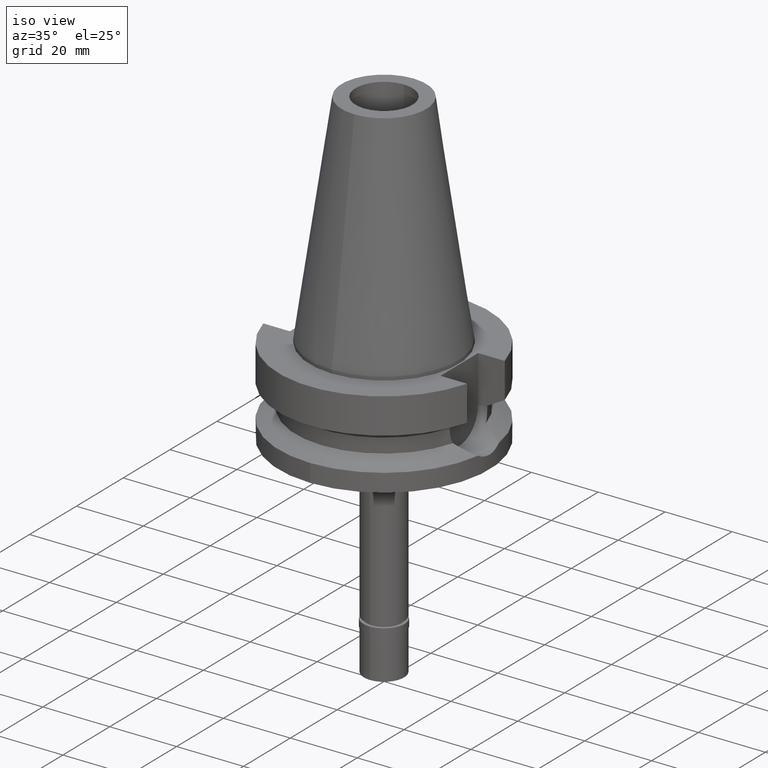
[diagram: clean part render]
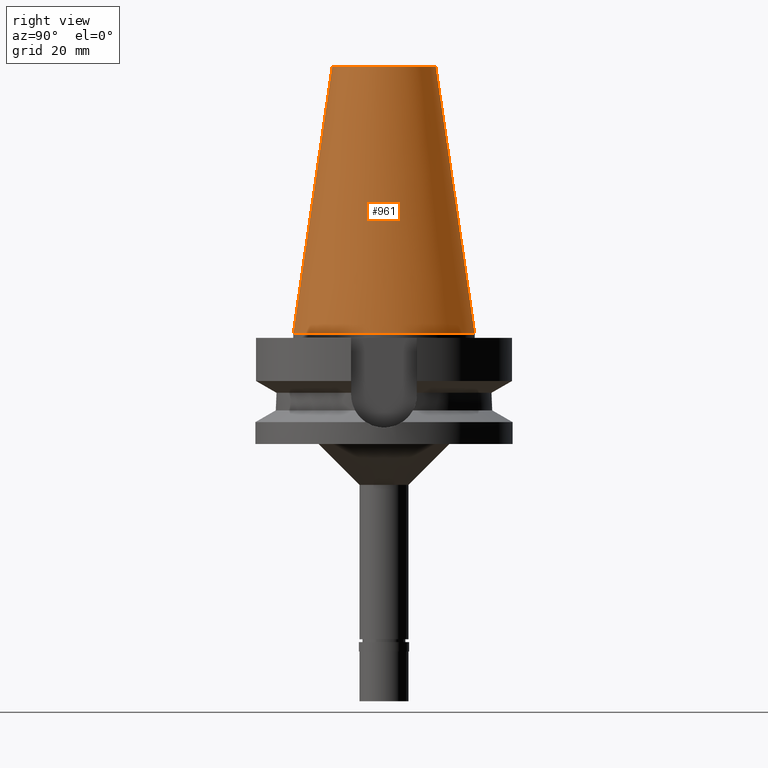
[diagram: tour spotlight — one face highlighted and labeled with its STEP entity id]
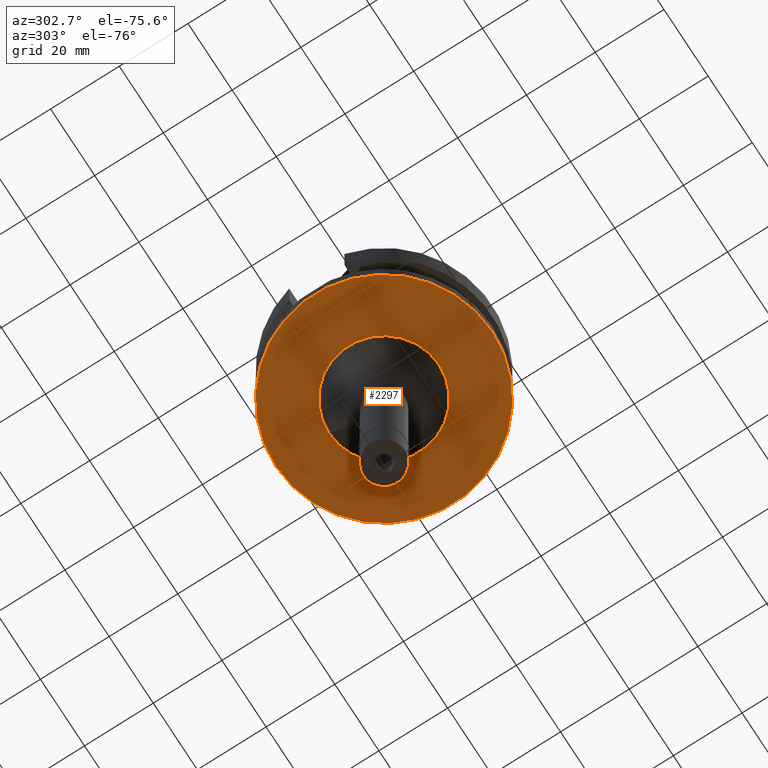
[diagram: tour spotlight — one face highlighted and labeled with its STEP entity id]
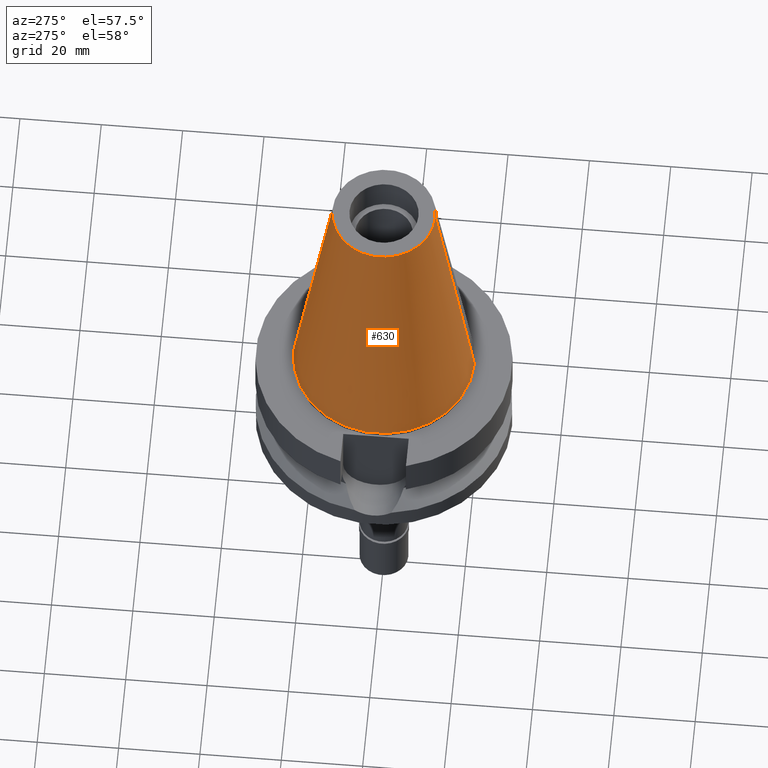
[diagram: tour spotlight — one face highlighted and labeled with its STEP entity id]
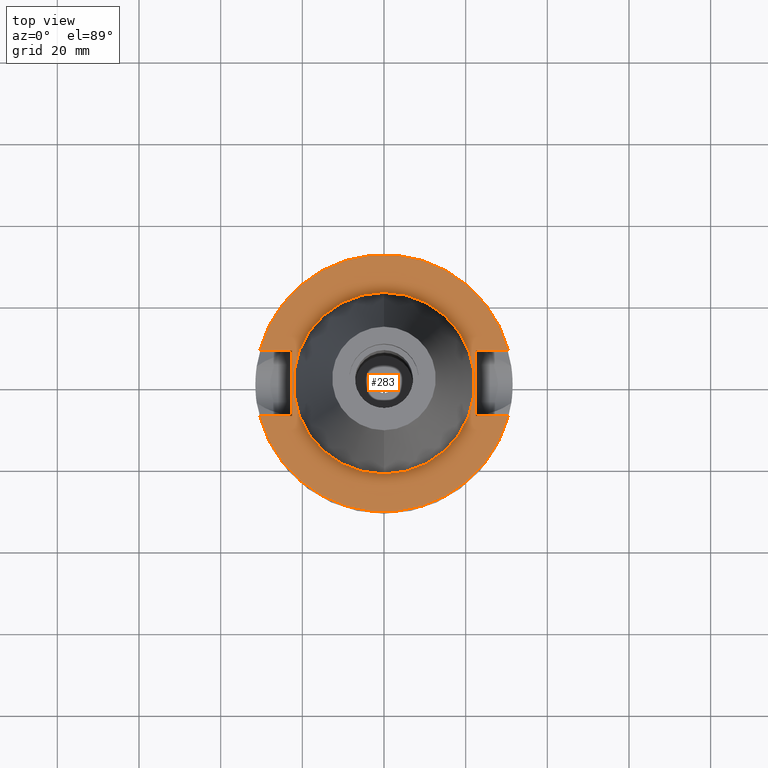
[diagram: tour spotlight — one face highlighted and labeled with its STEP entity id]
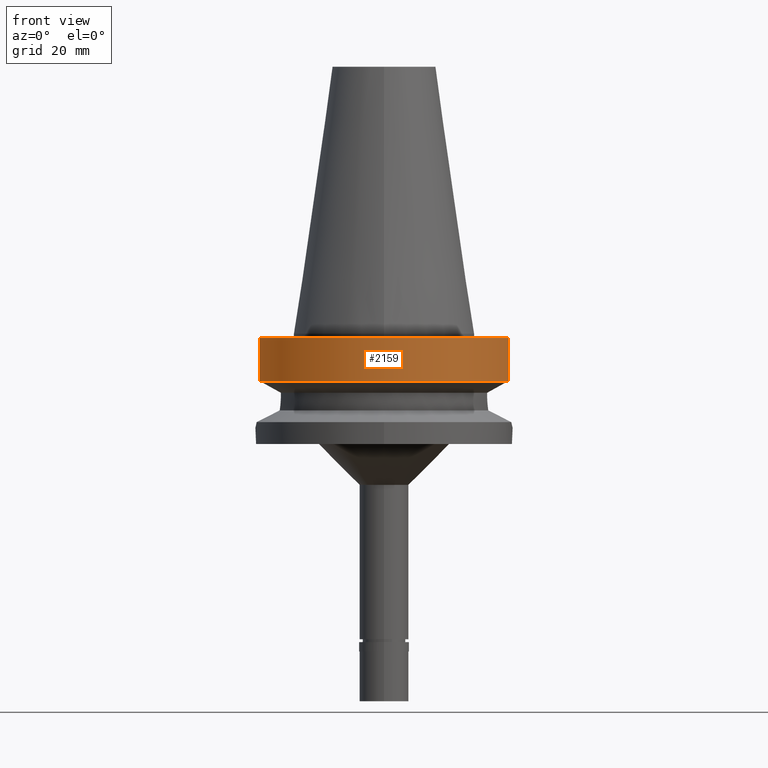
[diagram: tour spotlight — one face highlighted and labeled with its STEP entity id]
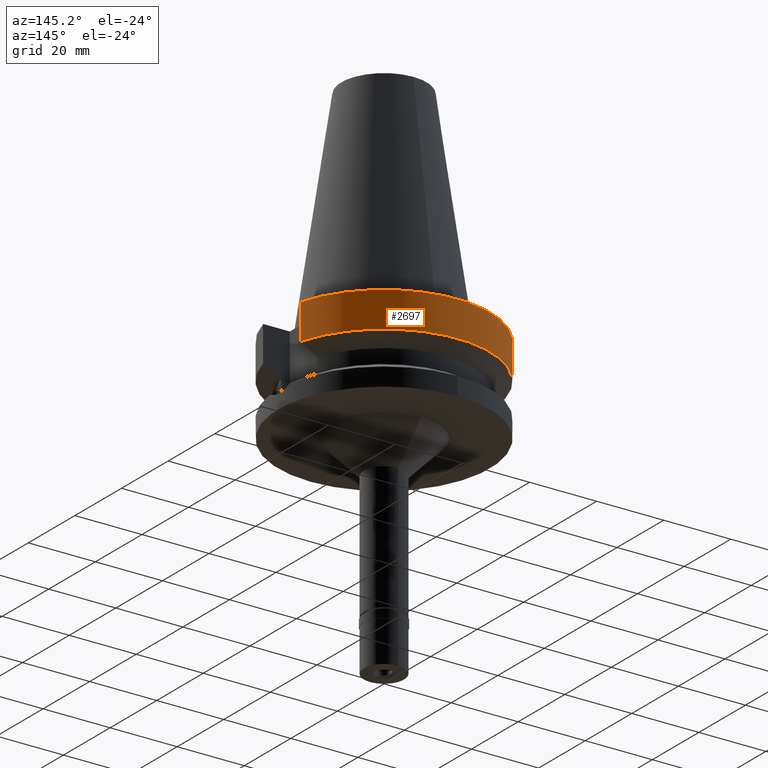
[diagram: tour spotlight — one face highlighted and labeled with its STEP entity id]
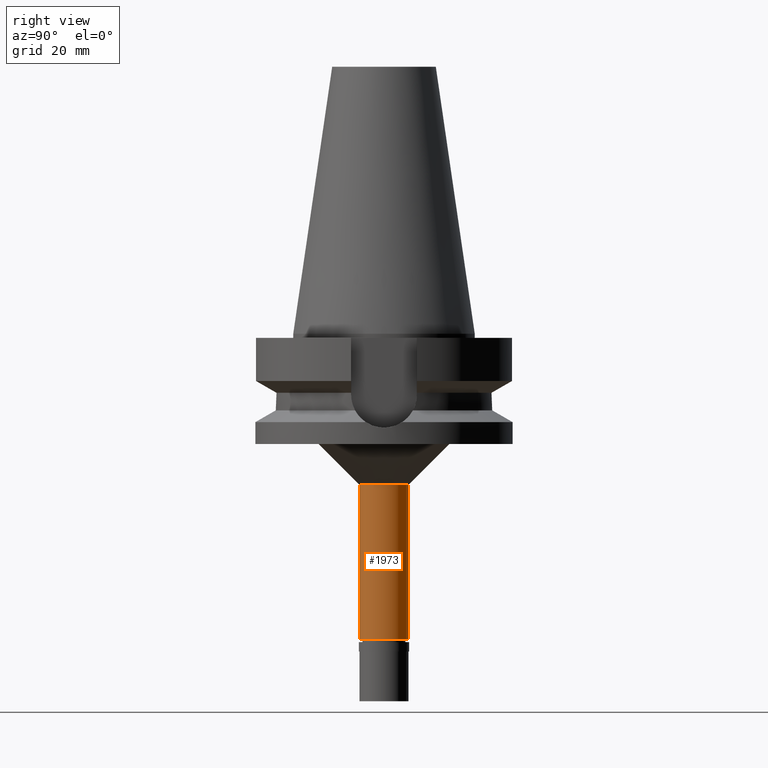
[diagram: tour spotlight — one face highlighted and labeled with its STEP entity id]
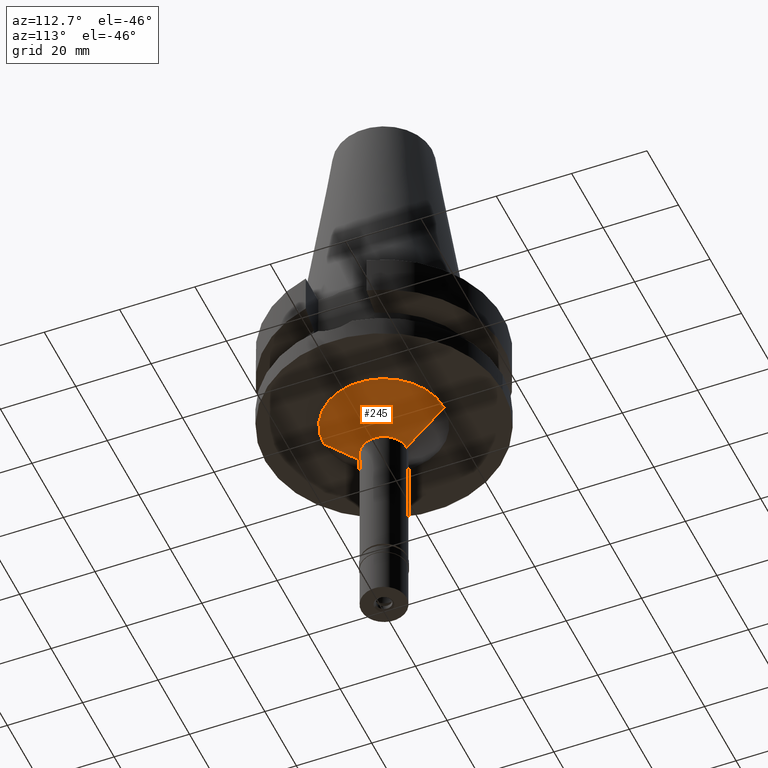
[diagram: tour spotlight — one face highlighted and labeled with its STEP entity id]
A machine part: a face-by-face anatomy tour. The part has 71 B-rep faces; the first image is the clean iso view, then the 8 largest visible faces are spotlighted one at a time (largest first), each with its STEP entity span.

Face 1 — right view, entity #961. In plain terms, the highlighted conical surface has half-angle 8.297 deg.
Definition (entity closure, byte-faithful):
#98 = AXIS2_PLACEMENT_3D ( 'NONE', #575, #1243, #2138 ) ;
#300 = DIRECTION ( 'NONE',  ( 0.0000000000000000000, -0.1443043893539925626, -0.9895333461855498891 ) ) ;
#316 = CARTESIAN_POINT ( 'NONE',  ( 0.0000000000000000000, 22.22500000000000142, 1.065814103639999827E-13 ) ) ;
#369 = CONICAL_SURFACE ( 'NONE', #2032, 17.45633449714999941, 0.1448099680379422438 ) ;
#387 = CIRCLE ( 'NONE', #1524, 22.22500000000000142 ) ;
#426 = VECTOR ( 'NONE', #493, 1000.000000000000114 ) ;
#436 = DIRECTION ( 'NONE',  ( 0.0000000000000000000, -1.000000000000000000, 0.0000000000000000000 ) ) ;
#443 = VERTEX_POINT ( 'NONE', #316 ) ;
#493 = DIRECTION ( 'NONE',  ( 0.0000000000000000000, 0.1443043893539925626, -0.9895333461855498891 ) ) ;
#528 = EDGE_CURVE ( 'NONE', #443, #1377, #387, .T. ) ;
#543 = ORIENTED_EDGE ( 'NONE', *, *, #528, .F. ) ;
#574 = VECTOR ( 'NONE', #300, 1000.000000000000114 ) ;
#575 = CARTESIAN_POINT ( 'NONE',  ( 0.0000000000000000000, 1.625106302469000024E-14, 65.40000000000000568 ) ) ;
#684 = EDGE_CURVE ( 'NONE', #1426, #1485, #2315, .T. ) ;
#774 = CARTESIAN_POINT ( 'NONE',  ( 0.0000000000000000000, -22.22500000000000142, 1.065814103639999827E-13 ) ) ;
#855 = ORIENTED_EDGE ( 'NONE', *, *, #1287, .F. ) ;
#955 = CARTESIAN_POINT ( 'NONE',  ( 0.0000000000000000000, 12.68766899429999917, 65.40000000000000568 ) ) ;
#961 = ADVANCED_FACE ( 'NONE', ( #1987 ), #369, .T. ) ;
#1156 = EDGE_CURVE ( 'NONE', #1485, #1377, #1188, .T. ) ;
#1188 = LINE ( 'NONE', #1871, #574 ) ;
#1243 = DIRECTION ( 'NONE',  ( 0.0000000000000000000, 0.0000000000000000000, -1.000000000000000000 ) ) ;
#1287 = EDGE_CURVE ( 'NONE', #1426, #443, #1638, .T. ) ;
#1377 = VERTEX_POINT ( 'NONE', #774 ) ;
#1426 = VERTEX_POINT ( 'NONE', #2849 ) ;
#1485 = VERTEX_POINT ( 'NONE', #2835 ) ;
#1524 = AXIS2_PLACEMENT_3D ( 'NONE', #2457, #1774, #2180 ) ;
#1638 = LINE ( 'NONE', #955, #426 ) ;
#1774 = DIRECTION ( 'NONE',  ( 0.0000000000000000000, 0.0000000000000000000, -1.000000000000000000 ) ) ;
#1871 = CARTESIAN_POINT ( 'NONE',  ( 0.0000000000000000000, -12.68766899429999917, 65.40000000000000568 ) ) ;
#1987 = FACE_OUTER_BOUND ( 'NONE', #2084, .T. ) ;
#2032 = AXIS2_PLACEMENT_3D ( 'NONE', #2468, #2854, #436 ) ;
#2084 = EDGE_LOOP ( 'NONE', ( #2194, #2181, #543, #855 ) ) ;
#2138 = DIRECTION ( 'NONE',  ( 0.0000000000000000000, 1.000000000000000000, 0.0000000000000000000 ) ) ;
#2180 = DIRECTION ( 'NONE',  ( 0.0000000000000000000, 1.000000000000000000, 0.0000000000000000000 ) ) ;
#2181 = ORIENTED_EDGE ( 'NONE', *, *, #1156, .T. ) ;
#2194 = ORIENTED_EDGE ( 'NONE', *, *, #684, .T. ) ;
#2315 = CIRCLE ( 'NONE', #98, 12.68766899429999917 ) ;
#2457 = CARTESIAN_POINT ( 'NONE',  ( 0.0000000000000000000, 1.625106302469000024E-14, 2.842170943039999687E-14 ) ) ;
#2468 = CARTESIAN_POINT ( 'NONE',  ( 0.0000000000000000000, 1.625106302469000024E-14, 32.70000000000000284 ) ) ;
#2835 = CARTESIAN_POINT ( 'NONE',  ( 0.0000000000000000000, -12.68766899429999917, 65.40000000000000568 ) ) ;
#2849 = CARTESIAN_POINT ( 'NONE',  ( 0.0000000000000000000, 12.68766899429999917, 65.40000000000000568 ) ) ;
#2854 = DIRECTION ( 'NONE',  ( 0.0000000000000000000, 0.0000000000000000000, -1.000000000000000000 ) ) ;

Face 2 — auxiliary view, entity #2297. In plain terms, the highlighted planar face has unit normal (0, 0, -1).
Definition (entity closure, byte-faithful):
#26 = AXIS2_PLACEMENT_3D ( 'NONE', #1858, #711, #2735 ) ;
#58 = VERTEX_POINT ( 'NONE', #1043 ) ;
#126 = ORIENTED_EDGE ( 'NONE', *, *, #2023, .F. ) ;
#325 = AXIS2_PLACEMENT_3D ( 'NONE', #1545, #2014, #2884 ) ;
#344 = CARTESIAN_POINT ( 'NONE',  ( 0.0000000000000000000, 0.0000000000000000000, -27.00000000000000000 ) ) ;
#378 = CIRCLE ( 'NONE', #2038, 31.50000000000000000 ) ;
#557 = VERTEX_POINT ( 'NONE', #615 ) ;
#615 = CARTESIAN_POINT ( 'NONE',  ( 0.0000000000000000000, -16.00000000000000000, -27.00000000000000000 ) ) ;
#711 = DIRECTION ( 'NONE',  ( 0.0000000000000000000, 0.0000000000000000000, -1.000000000000000000 ) ) ;
#795 = CIRCLE ( 'NONE', #1805, 16.00000000000000000 ) ;
#823 = VERTEX_POINT ( 'NONE', #2813 ) ;
#946 = FACE_BOUND ( 'NONE', #1363, .T. ) ;
#954 = EDGE_CURVE ( 'NONE', #58, #823, #1178, .T. ) ;
#1043 = CARTESIAN_POINT ( 'NONE',  ( 0.0000000000000000000, -31.50000000000000000, -27.00000000000000000 ) ) ;
#1128 = VERTEX_POINT ( 'NONE', #2268 ) ;
#1178 = CIRCLE ( 'NONE', #325, 31.50000000000000000 ) ;
#1363 = EDGE_LOOP ( 'NONE', ( #2139, #2694 ) ) ;
#1478 = DIRECTION ( 'NONE',  ( 0.0000000000000000000, 1.000000000000000000, 0.0000000000000000000 ) ) ;
#1517 = AXIS2_PLACEMENT_3D ( 'NONE', #1540, #2433, #2214 ) ;
#1540 = CARTESIAN_POINT ( 'NONE',  ( 0.0000000000000000000, 0.0000000000000000000, -27.00000000000000000 ) ) ;
#1545 = CARTESIAN_POINT ( 'NONE',  ( 0.0000000000000000000, 2.118271568485000005E-14, -27.00000000000000000 ) ) ;
#1761 = FACE_OUTER_BOUND ( 'NONE', #2383, .T. ) ;
#1805 = AXIS2_PLACEMENT_3D ( 'NONE', #344, #2125, #2363 ) ;
#1847 = EDGE_CURVE ( 'NONE', #557, #1128, #2767, .T. ) ;
#1858 = CARTESIAN_POINT ( 'NONE',  ( 0.0000000000000000000, 0.0000000000000000000, -27.00000000000000000 ) ) ;
#2014 = DIRECTION ( 'NONE',  ( 0.0000000000000000000, 0.0000000000000000000, 1.000000000000000000 ) ) ;
#2018 = ORIENTED_EDGE ( 'NONE', *, *, #954, .F. ) ;
#2023 = EDGE_CURVE ( 'NONE', #823, #58, #378, .T. ) ;
#2038 = AXIS2_PLACEMENT_3D ( 'NONE', #2417, #2184, #1478 ) ;
#2064 = EDGE_CURVE ( 'NONE', #1128, #557, #795, .T. ) ;
#2125 = DIRECTION ( 'NONE',  ( 0.0000000000000000000, 0.0000000000000000000, -1.000000000000000000 ) ) ;
#2139 = ORIENTED_EDGE ( 'NONE', *, *, #2064, .F. ) ;
#2184 = DIRECTION ( 'NONE',  ( 0.0000000000000000000, 0.0000000000000000000, 1.000000000000000000 ) ) ;
#2214 = DIRECTION ( 'NONE',  ( 0.0000000000000000000, -1.000000000000000000, 0.0000000000000000000 ) ) ;
#2268 = CARTESIAN_POINT ( 'NONE',  ( 0.0000000000000000000, 16.00000000000000000, -27.00000000000000000 ) ) ;
#2297 = ADVANCED_FACE ( 'NONE', ( #1761, #946 ), #2521, .T. ) ;
#2363 = DIRECTION ( 'NONE',  ( 0.0000000000000000000, 1.000000000000000000, 0.0000000000000000000 ) ) ;
#2383 = EDGE_LOOP ( 'NONE', ( #126, #2018 ) ) ;
#2417 = CARTESIAN_POINT ( 'NONE',  ( 0.0000000000000000000, 2.118271568485000005E-14, -27.00000000000000000 ) ) ;
#2433 = DIRECTION ( 'NONE',  ( 0.0000000000000000000, 0.0000000000000000000, -1.000000000000000000 ) ) ;
#2521 = PLANE ( 'NONE',  #26 ) ;
#2694 = ORIENTED_EDGE ( 'NONE', *, *, #1847, .F. ) ;
#2735 = DIRECTION ( 'NONE',  ( 0.0000000000000000000, -1.000000000000000000, 0.0000000000000000000 ) ) ;
#2767 = CIRCLE ( 'NONE', #1517, 16.00000000000000000 ) ;
#2813 = CARTESIAN_POINT ( 'NONE',  ( 0.0000000000000000000, 31.50000000000000000, -27.00000000000000000 ) ) ;
#2884 = DIRECTION ( 'NONE',  ( 0.0000000000000000000, -1.000000000000000000, 0.0000000000000000000 ) ) ;

Face 3 — auxiliary view, entity #630. In plain terms, the highlighted conical surface has half-angle 8.297 deg.
Definition (entity closure, byte-faithful):
#177 = ORIENTED_EDGE ( 'NONE', *, *, #1287, .T. ) ;
#190 = ORIENTED_EDGE ( 'NONE', *, *, #1156, .F. ) ;
#211 = DIRECTION ( 'NONE',  ( 0.0000000000000000000, -1.000000000000000000, 0.0000000000000000000 ) ) ;
#300 = DIRECTION ( 'NONE',  ( 0.0000000000000000000, -0.1443043893539925626, -0.9895333461855498891 ) ) ;
#316 = CARTESIAN_POINT ( 'NONE',  ( 0.0000000000000000000, 22.22500000000000142, 1.065814103639999827E-13 ) ) ;
#426 = VECTOR ( 'NONE', #493, 1000.000000000000114 ) ;
#443 = VERTEX_POINT ( 'NONE', #316 ) ;
#493 = DIRECTION ( 'NONE',  ( 0.0000000000000000000, 0.1443043893539925626, -0.9895333461855498891 ) ) ;
#535 = AXIS2_PLACEMENT_3D ( 'NONE', #778, #2141, #1735 ) ;
#574 = VECTOR ( 'NONE', #300, 1000.000000000000114 ) ;
#630 = ADVANCED_FACE ( 'NONE', ( #1584 ), #1900, .T. ) ;
#676 = DIRECTION ( 'NONE',  ( 0.0000000000000000000, 0.0000000000000000000, -1.000000000000000000 ) ) ;
#774 = CARTESIAN_POINT ( 'NONE',  ( 0.0000000000000000000, -22.22500000000000142, 1.065814103639999827E-13 ) ) ;
#778 = CARTESIAN_POINT ( 'NONE',  ( 0.0000000000000000000, 1.625106302469000024E-14, 2.842170943039999687E-14 ) ) ;
#888 = CARTESIAN_POINT ( 'NONE',  ( 0.0000000000000000000, 1.625106302469000024E-14, 32.70000000000000284 ) ) ;
#955 = CARTESIAN_POINT ( 'NONE',  ( 0.0000000000000000000, 12.68766899429999917, 65.40000000000000568 ) ) ;
#1112 = DIRECTION ( 'NONE',  ( 0.0000000000000000000, -1.000000000000000000, 0.0000000000000000000 ) ) ;
#1156 = EDGE_CURVE ( 'NONE', #1485, #1377, #1188, .T. ) ;
#1188 = LINE ( 'NONE', #1871, #574 ) ;
#1287 = EDGE_CURVE ( 'NONE', #1426, #443, #1638, .T. ) ;
#1316 = ORIENTED_EDGE ( 'NONE', *, *, #1995, .F. ) ;
#1377 = VERTEX_POINT ( 'NONE', #774 ) ;
#1426 = VERTEX_POINT ( 'NONE', #2849 ) ;
#1485 = VERTEX_POINT ( 'NONE', #2835 ) ;
#1497 = EDGE_LOOP ( 'NONE', ( #1316, #190, #1994, #177 ) ) ;
#1584 = FACE_OUTER_BOUND ( 'NONE', #1497, .T. ) ;
#1638 = LINE ( 'NONE', #955, #426 ) ;
#1672 = AXIS2_PLACEMENT_3D ( 'NONE', #888, #676, #211 ) ;
#1735 = DIRECTION ( 'NONE',  ( 0.0000000000000000000, -1.000000000000000000, 0.0000000000000000000 ) ) ;
#1806 = EDGE_CURVE ( 'NONE', #1485, #1426, #2319, .T. ) ;
#1871 = CARTESIAN_POINT ( 'NONE',  ( 0.0000000000000000000, -12.68766899429999917, 65.40000000000000568 ) ) ;
#1900 = CONICAL_SURFACE ( 'NONE', #1672, 17.45633449714999941, 0.1448099680379422438 ) ;
#1994 = ORIENTED_EDGE ( 'NONE', *, *, #1806, .T. ) ;
#1995 = EDGE_CURVE ( 'NONE', #1377, #443, #2227, .T. ) ;
#1997 = CARTESIAN_POINT ( 'NONE',  ( 0.0000000000000000000, 1.625106302469000024E-14, 65.40000000000000568 ) ) ;
#2053 = DIRECTION ( 'NONE',  ( 0.0000000000000000000, 0.0000000000000000000, -1.000000000000000000 ) ) ;
#2141 = DIRECTION ( 'NONE',  ( 0.0000000000000000000, 0.0000000000000000000, -1.000000000000000000 ) ) ;
#2227 = CIRCLE ( 'NONE', #535, 22.22500000000000142 ) ;
#2319 = CIRCLE ( 'NONE', #2630, 12.68766899429999917 ) ;
#2630 = AXIS2_PLACEMENT_3D ( 'NONE', #1997, #2053, #1112 ) ;
#2835 = CARTESIAN_POINT ( 'NONE',  ( 0.0000000000000000000, -12.68766899429999917, 65.40000000000000568 ) ) ;
#2849 = CARTESIAN_POINT ( 'NONE',  ( 0.0000000000000000000, 12.68766899429999917, 65.40000000000000568 ) ) ;

Face 4 — top view, entity #283. In plain terms, the highlighted planar face has unit normal (0, 0, -1).
Definition (entity closure, byte-faithful):
#15 = CARTESIAN_POINT ( 'NONE',  ( 0.0000000000000000000, 2.118271568485000005E-14, -1.000000000000000000 ) ) ;
#17 = PLANE ( 'NONE',  #488 ) ;
#60 = ORIENTED_EDGE ( 'NONE', *, *, #1402, .T. ) ;
#100 = LINE ( 'NONE', #2178, #1135 ) ;
#110 = ORIENTED_EDGE ( 'NONE', *, *, #349, .F. ) ;
#142 = VECTOR ( 'NONE', #257, 1000.000000000000000 ) ;
#204 = CARTESIAN_POINT ( 'NONE',  ( 22.50000000000000000, 8.050000000000000711, -1.000000000000000000 ) ) ;
#214 = CARTESIAN_POINT ( 'NONE',  ( 0.0000000000000000000, 22.22500000000000142, -1.000000000000000000 ) ) ;
#238 = EDGE_CURVE ( 'NONE', #694, #1406, #2010, .T. ) ;
#241 = VECTOR ( 'NONE', #1809, 1000.000000000000000 ) ;
#257 = DIRECTION ( 'NONE',  ( 0.0000000000000000000, -1.000000000000000000, 0.0000000000000000000 ) ) ;
#283 = ADVANCED_FACE ( 'NONE', ( #1087, #876 ), #17, .F. ) ;
#293 = LINE ( 'NONE', #2532, #1234 ) ;
#299 = VERTEX_POINT ( 'NONE', #1588 ) ;
#349 = EDGE_CURVE ( 'NONE', #1406, #299, #293, .T. ) ;
#386 = DIRECTION ( 'NONE',  ( 0.0000000000000000000, -1.000000000000000000, 0.0000000000000000000 ) ) ;
#448 = EDGE_CURVE ( 'NONE', #2833, #2092, #1205, .T. ) ;
#481 = CIRCLE ( 'NONE', #2405, 31.50000000000000000 ) ;
#488 = AXIS2_PLACEMENT_3D ( 'NONE', #1793, #2673, #1770 ) ;
#694 = VERTEX_POINT ( 'NONE', #1483 ) ;
#700 = EDGE_CURVE ( 'NONE', #2092, #956, #100, .T. ) ;
#790 = DIRECTION ( 'NONE',  ( 1.000000000000000000, 3.573249715389999860E-14, 0.0000000000000000000 ) ) ;
#803 = CARTESIAN_POINT ( 'NONE',  ( -22.50000000000000000, -8.050000000000000711, -1.000000000000000000 ) ) ;
#866 = EDGE_CURVE ( 'NONE', #1922, #1687, #1567, .T. ) ;
#876 = FACE_BOUND ( 'NONE', #1350, .T. ) ;
#953 = DIRECTION ( 'NONE',  ( -1.000000000000000000, -3.550916904668000126E-14, 0.0000000000000000000 ) ) ;
#956 = VERTEX_POINT ( 'NONE', #2193 ) ;
#979 = AXIS2_PLACEMENT_3D ( 'NONE', #1222, #1452, #2746 ) ;
#994 = CARTESIAN_POINT ( 'NONE',  ( 0.0000000000000000000, 2.118271568485000005E-14, -1.000000000000000000 ) ) ;
#1001 = CARTESIAN_POINT ( 'NONE',  ( -22.50000000000000000, 8.050000000000000711, -1.000000000000000000 ) ) ;
#1087 = FACE_OUTER_BOUND ( 'NONE', #1471, .T. ) ;
#1135 = VECTOR ( 'NONE', #790, 1000.000000000000000 ) ;
#1205 = LINE ( 'NONE', #2112, #142 ) ;
#1206 = LINE ( 'NONE', #1220, #1617 ) ;
#1220 = CARTESIAN_POINT ( 'NONE',  ( 22.50000000000000000, 8.050000000000000711, -1.000000000000000000 ) ) ;
#1222 = CARTESIAN_POINT ( 'NONE',  ( 0.0000000000000000000, 2.118271568485000005E-14, -1.000000000000000000 ) ) ;
#1234 = VECTOR ( 'NONE', #953, 1000.000000000000000 ) ;
#1350 = EDGE_LOOP ( 'NONE', ( #2721, #2196 ) ) ;
#1364 = CIRCLE ( 'NONE', #979, 31.50000000000000000 ) ;
#1402 = EDGE_CURVE ( 'NONE', #2833, #2621, #1206, .T. ) ;
#1406 = VERTEX_POINT ( 'NONE', #1001 ) ;
#1452 = DIRECTION ( 'NONE',  ( 0.0000000000000000000, 0.0000000000000000000, -1.000000000000000000 ) ) ;
#1471 = EDGE_LOOP ( 'NONE', ( #2535, #2461, #2333, #2183, #60, #1728, #110, #2296 ) ) ;
#1483 = CARTESIAN_POINT ( 'NONE',  ( -22.50000000000000000, -8.050000000000000711, -1.000000000000000000 ) ) ;
#1509 = AXIS2_PLACEMENT_3D ( 'NONE', #994, #1955, #386 ) ;
#1567 = CIRCLE ( 'NONE', #1509, 22.22500000000000142 ) ;
#1588 = CARTESIAN_POINT ( 'NONE',  ( -30.45402272279000044, 8.050000000000000711, -1.000000000000000000 ) ) ;
#1617 = VECTOR ( 'NONE', #1892, 1000.000000000000000 ) ;
#1687 = VERTEX_POINT ( 'NONE', #214 ) ;
#1728 = ORIENTED_EDGE ( 'NONE', *, *, #2873, .F. ) ;
#1770 = DIRECTION ( 'NONE',  ( 0.0000000000000000000, -1.000000000000000000, 0.0000000000000000000 ) ) ;
#1780 = CARTESIAN_POINT ( 'NONE',  ( -22.50000000000000000, -8.050000000000000711, -1.000000000000000000 ) ) ;
#1793 = CARTESIAN_POINT ( 'NONE',  ( 0.0000000000000000000, 1.212400331155999925E-14, -1.000000000000000000 ) ) ;
#1809 = DIRECTION ( 'NONE',  ( 0.0000000000000000000, 1.000000000000000000, 0.0000000000000000000 ) ) ;
#1830 = DIRECTION ( 'NONE',  ( 0.0000000000000000000, 0.0000000000000000000, -1.000000000000000000 ) ) ;
#1880 = DIRECTION ( 'NONE',  ( 0.0000000000000000000, 0.0000000000000000000, 1.000000000000000000 ) ) ;
#1892 = DIRECTION ( 'NONE',  ( 1.000000000000000000, -3.506251283225999947E-14, 0.0000000000000000000 ) ) ;
#1896 = CARTESIAN_POINT ( 'NONE',  ( 0.0000000000000000000, 2.118271568485000005E-14, -1.000000000000000000 ) ) ;
#1922 = VERTEX_POINT ( 'NONE', #2514 ) ;
#1924 = VECTOR ( 'NONE', #2868, 1000.000000000000000 ) ;
#1944 = VERTEX_POINT ( 'NONE', #2098 ) ;
#1955 = DIRECTION ( 'NONE',  ( 0.0000000000000000000, 0.0000000000000000000, 1.000000000000000000 ) ) ;
#1965 = LINE ( 'NONE', #803, #1924 ) ;
#1969 = EDGE_CURVE ( 'NONE', #956, #1944, #481, .T. ) ;
#2010 = LINE ( 'NONE', #1780, #241 ) ;
#2092 = VERTEX_POINT ( 'NONE', #2832 ) ;
#2098 = CARTESIAN_POINT ( 'NONE',  ( -30.45402272279000044, -8.050000000000000711, -1.000000000000000000 ) ) ;
#2112 = CARTESIAN_POINT ( 'NONE',  ( 22.50000000000000000, 8.050000000000000711, -1.000000000000000000 ) ) ;
#2178 = CARTESIAN_POINT ( 'NONE',  ( 22.50000000000000000, -8.050000000000000711, -1.000000000000000000 ) ) ;
#2183 = ORIENTED_EDGE ( 'NONE', *, *, #448, .F. ) ;
#2193 = CARTESIAN_POINT ( 'NONE',  ( 30.45402272279000044, -8.050000000000000711, -1.000000000000000000 ) ) ;
#2196 = ORIENTED_EDGE ( 'NONE', *, *, #866, .F. ) ;
#2258 = CIRCLE ( 'NONE', #2796, 22.22500000000000142 ) ;
#2296 = ORIENTED_EDGE ( 'NONE', *, *, #238, .F. ) ;
#2333 = ORIENTED_EDGE ( 'NONE', *, *, #700, .F. ) ;
#2405 = AXIS2_PLACEMENT_3D ( 'NONE', #15, #1830, #2712 ) ;
#2458 = EDGE_CURVE ( 'NONE', #1687, #1922, #2258, .T. ) ;
#2461 = ORIENTED_EDGE ( 'NONE', *, *, #1969, .F. ) ;
#2514 = CARTESIAN_POINT ( 'NONE',  ( 0.0000000000000000000, -22.22500000000000142, -1.000000000000000000 ) ) ;
#2532 = CARTESIAN_POINT ( 'NONE',  ( -22.50000000000000000, 8.050000000000000711, -1.000000000000000000 ) ) ;
#2535 = ORIENTED_EDGE ( 'NONE', *, *, #2598, .T. ) ;
#2566 = DIRECTION ( 'NONE',  ( 0.0000000000000000000, 1.000000000000000000, 0.0000000000000000000 ) ) ;
#2598 = EDGE_CURVE ( 'NONE', #694, #1944, #1965, .T. ) ;
#2602 = CARTESIAN_POINT ( 'NONE',  ( 30.45402272279000044, 8.050000000000000711, -1.000000000000000000 ) ) ;
#2621 = VERTEX_POINT ( 'NONE', #2602 ) ;
#2673 = DIRECTION ( 'NONE',  ( 0.0000000000000000000, 0.0000000000000000000, -1.000000000000000000 ) ) ;
#2712 = DIRECTION ( 'NONE',  ( 0.0000000000000000000, -1.000000000000000000, 0.0000000000000000000 ) ) ;
#2721 = ORIENTED_EDGE ( 'NONE', *, *, #2458, .F. ) ;
#2746 = DIRECTION ( 'NONE',  ( 0.0000000000000000000, 1.000000000000000000, 0.0000000000000000000 ) ) ;
#2796 = AXIS2_PLACEMENT_3D ( 'NONE', #1896, #1880, #2566 ) ;
#2832 = CARTESIAN_POINT ( 'NONE',  ( 22.50000000000000000, -8.050000000000000711, -1.000000000000000000 ) ) ;
#2833 = VERTEX_POINT ( 'NONE', #204 ) ;
#2868 = DIRECTION ( 'NONE',  ( -1.000000000000000000, 3.550916904668000126E-14, 0.0000000000000000000 ) ) ;
#2873 = EDGE_CURVE ( 'NONE', #299, #2621, #1364, .T. ) ;

Face 5 — front view, entity #2159. In plain terms, the highlighted cylindrical surface (partial cylindrical patch) has radius 31.5 mm, axis along (0, 0, -1).
Definition (entity closure, byte-faithful):
#15 = CARTESIAN_POINT ( 'NONE',  ( 0.0000000000000000000, 2.118271568485000005E-14, -1.000000000000000000 ) ) ;
#55 = ORIENTED_EDGE ( 'NONE', *, *, #1560, .F. ) ;
#222 = DIRECTION ( 'NONE',  ( 0.0000000000000000000, -1.000000000000000000, 0.0000000000000000000 ) ) ;
#431 = EDGE_CURVE ( 'NONE', #792, #1944, #507, .T. ) ;
#481 = CIRCLE ( 'NONE', #2405, 31.50000000000000000 ) ;
#507 = LINE ( 'NONE', #967, #1143 ) ;
#572 = AXIS2_PLACEMENT_3D ( 'NONE', #1630, #687, #222 ) ;
#687 = DIRECTION ( 'NONE',  ( 0.0000000000000000000, 0.0000000000000000000, -1.000000000000000000 ) ) ;
#723 = CYLINDRICAL_SURFACE ( 'NONE', #572, 31.50000000000000000 ) ;
#792 = VERTEX_POINT ( 'NONE', #1229 ) ;
#956 = VERTEX_POINT ( 'NONE', #2193 ) ;
#967 = CARTESIAN_POINT ( 'NONE',  ( -30.45402291383999582, -8.049999277231000505, -11.56551216249999925 ) ) ;
#1027 = ORIENTED_EDGE ( 'NONE', *, *, #1969, .T. ) ;
#1143 = VECTOR ( 'NONE', #1403, 1000.000000000000114 ) ;
#1229 = CARTESIAN_POINT ( 'NONE',  ( -30.45402291383999582, -8.049999277231000505, -11.56551216249999925 ) ) ;
#1285 = ORIENTED_EDGE ( 'NONE', *, *, #1938, .T. ) ;
#1296 = LINE ( 'NONE', #2389, #2895 ) ;
#1327 = VERTEX_POINT ( 'NONE', #1650 ) ;
#1403 = DIRECTION ( 'NONE',  ( 1.808251371277990343E-08, -6.840834498293961193E-08, 0.9999999999999974465 ) ) ;
#1417 = DIRECTION ( 'NONE',  ( 0.0000000000000000000, 0.0000000000000000000, 1.000000000000000000 ) ) ;
#1560 = EDGE_CURVE ( 'NONE', #956, #1327, #1296, .T. ) ;
#1630 = CARTESIAN_POINT ( 'NONE',  ( 0.0000000000000000000, 2.118271568485000005E-14, 72.96999999999999886 ) ) ;
#1646 = CARTESIAN_POINT ( 'NONE',  ( 0.0000000000000000000, 1.065333950388000029E-14, -11.56550565266999975 ) ) ;
#1650 = CARTESIAN_POINT ( 'NONE',  ( 30.45402272279000044, -8.049999999999000622, -11.56550565266999975 ) ) ;
#1662 = DIRECTION ( 'NONE',  ( 0.0000000000000000000, -1.000000000000000000, 0.0000000000000000000 ) ) ;
#1668 = AXIS2_PLACEMENT_3D ( 'NONE', #1646, #1417, #1662 ) ;
#1830 = DIRECTION ( 'NONE',  ( 0.0000000000000000000, 0.0000000000000000000, -1.000000000000000000 ) ) ;
#1938 = EDGE_CURVE ( 'NONE', #792, #1327, #2682, .T. ) ;
#1944 = VERTEX_POINT ( 'NONE', #2098 ) ;
#1969 = EDGE_CURVE ( 'NONE', #956, #1944, #481, .T. ) ;
#2098 = CARTESIAN_POINT ( 'NONE',  ( -30.45402272279000044, -8.050000000000000711, -1.000000000000000000 ) ) ;
#2159 = ADVANCED_FACE ( 'NONE', ( #2286 ), #723, .T. ) ;
#2193 = CARTESIAN_POINT ( 'NONE',  ( 30.45402272279000044, -8.050000000000000711, -1.000000000000000000 ) ) ;
#2286 = FACE_OUTER_BOUND ( 'NONE', #2888, .T. ) ;
#2389 = CARTESIAN_POINT ( 'NONE',  ( 30.45402272279000044, -8.050000000000000711, -1.000000000000000000 ) ) ;
#2405 = AXIS2_PLACEMENT_3D ( 'NONE', #15, #1830, #2712 ) ;
#2682 = CIRCLE ( 'NONE', #1668, 31.50000000000000000 ) ;
#2712 = DIRECTION ( 'NONE',  ( 0.0000000000000000000, -1.000000000000000000, 0.0000000000000000000 ) ) ;
#2821 = DIRECTION ( 'NONE',  ( -1.037365253308017645E-07, -3.924459855690068671E-07, -0.9999999999999177325 ) ) ;
#2831 = ORIENTED_EDGE ( 'NONE', *, *, #431, .F. ) ;
#2888 = EDGE_LOOP ( 'NONE', ( #2831, #1285, #55, #1027 ) ) ;
#2895 = VECTOR ( 'NONE', #2821, 999.9999999999998863 ) ;

Face 6 — auxiliary view, entity #2697. In plain terms, the highlighted cylindrical surface (partial cylindrical patch) has radius 31.5 mm, axis along (0, 0, -1).
Definition (entity closure, byte-faithful):
#78 = VECTOR ( 'NONE', #1365, 1000.000000000000114 ) ;
#109 = CARTESIAN_POINT ( 'NONE',  ( -30.45402162709000038, 8.050004145119000754, -11.56546831520000040 ) ) ;
#111 = CARTESIAN_POINT ( 'NONE',  ( -30.45402272279000044, 8.050000000000000711, -1.000000000000000000 ) ) ;
#299 = VERTEX_POINT ( 'NONE', #1588 ) ;
#366 = LINE ( 'NONE', #111, #1031 ) ;
#465 = AXIS2_PLACEMENT_3D ( 'NONE', #2221, #1753, #862 ) ;
#605 = CARTESIAN_POINT ( 'NONE',  ( 30.45402291389999760, 8.049999276982999774, -11.56551216472999855 ) ) ;
#845 = EDGE_CURVE ( 'NONE', #299, #2520, #366, .T. ) ;
#862 = DIRECTION ( 'NONE',  ( 0.0000000000000000000, -1.000000000000000000, 0.0000000000000000000 ) ) ;
#979 = AXIS2_PLACEMENT_3D ( 'NONE', #1222, #1452, #2746 ) ;
#1031 = VECTOR ( 'NONE', #2827, 999.9999999999998863 ) ;
#1048 = ORIENTED_EDGE ( 'NONE', *, *, #2873, .T. ) ;
#1181 = AXIS2_PLACEMENT_3D ( 'NONE', #2809, #1950, #2200 ) ;
#1222 = CARTESIAN_POINT ( 'NONE',  ( 0.0000000000000000000, 2.118271568485000005E-14, -1.000000000000000000 ) ) ;
#1312 = FACE_OUTER_BOUND ( 'NONE', #2775, .T. ) ;
#1364 = CIRCLE ( 'NONE', #979, 31.50000000000000000 ) ;
#1365 = DIRECTION ( 'NONE',  ( -1.808870115008990849E-08, 6.843175744406962773E-08, 0.9999999999999974465 ) ) ;
#1428 = EDGE_CURVE ( 'NONE', #1614, #2520, #1755, .T. ) ;
#1452 = DIRECTION ( 'NONE',  ( 0.0000000000000000000, 0.0000000000000000000, -1.000000000000000000 ) ) ;
#1482 = CYLINDRICAL_SURFACE ( 'NONE', #465, 31.50000000000000000 ) ;
#1588 = CARTESIAN_POINT ( 'NONE',  ( -30.45402272279000044, 8.050000000000000711, -1.000000000000000000 ) ) ;
#1614 = VERTEX_POINT ( 'NONE', #605 ) ;
#1753 = DIRECTION ( 'NONE',  ( 0.0000000000000000000, 0.0000000000000000000, -1.000000000000000000 ) ) ;
#1755 = CIRCLE ( 'NONE', #1181, 31.50000000000000000 ) ;
#1941 = ORIENTED_EDGE ( 'NONE', *, *, #2249, .F. ) ;
#1950 = DIRECTION ( 'NONE',  ( 0.0000000000000000000, 0.0000000000000000000, 1.000000000000000000 ) ) ;
#2075 = CARTESIAN_POINT ( 'NONE',  ( 30.45402291389999760, 8.049999276982999774, -11.56551216472999855 ) ) ;
#2161 = ORIENTED_EDGE ( 'NONE', *, *, #845, .F. ) ;
#2197 = LINE ( 'NONE', #2075, #78 ) ;
#2200 = DIRECTION ( 'NONE',  ( 0.0000000000000000000, 1.000000000000000000, 0.0000000000000000000 ) ) ;
#2221 = CARTESIAN_POINT ( 'NONE',  ( 0.0000000000000000000, 2.118271568485000005E-14, 72.96999999999999886 ) ) ;
#2249 = EDGE_CURVE ( 'NONE', #1614, #2621, #2197, .T. ) ;
#2520 = VERTEX_POINT ( 'NONE', #109 ) ;
#2602 = CARTESIAN_POINT ( 'NONE',  ( 30.45402272279000044, 8.050000000000000711, -1.000000000000000000 ) ) ;
#2621 = VERTEX_POINT ( 'NONE', #2602 ) ;
#2697 = ADVANCED_FACE ( 'NONE', ( #1312 ), #1482, .T. ) ;
#2746 = DIRECTION ( 'NONE',  ( 0.0000000000000000000, 1.000000000000000000, 0.0000000000000000000 ) ) ;
#2775 = EDGE_LOOP ( 'NONE', ( #2161, #1048, #1941, #2828 ) ) ;
#2809 = CARTESIAN_POINT ( 'NONE',  ( 0.0000000000000000000, 1.065333950388000029E-14, -11.56550565266999975 ) ) ;
#2827 = DIRECTION ( 'NONE',  ( 1.037050939240017801E-07, 3.923270772424069109E-07, -0.9999999999999177325 ) ) ;
#2828 = ORIENTED_EDGE ( 'NONE', *, *, #1428, .T. ) ;
#2873 = EDGE_CURVE ( 'NONE', #299, #2621, #1364, .T. ) ;

Face 7 — right view, entity #1973. In plain terms, the highlighted cylindrical surface (edge-blend (fillet) strip) has radius 6 mm, axis along (0, 0, -1).
Definition (entity closure, byte-faithful):
#148 = DIRECTION ( 'NONE',  ( 0.0000000000000000000, -1.000000000000000000, 0.0000000000000000000 ) ) ;
#185 = CARTESIAN_POINT ( 'NONE',  ( 0.0000000000000000000, 6.000000000000000000, -74.80000000000001137 ) ) ;
#263 = LINE ( 'NONE', #1396, #470 ) ;
#266 = EDGE_CURVE ( 'NONE', #1727, #2646, #2279, .T. ) ;
#470 = VECTOR ( 'NONE', #2035, 1000.000000000000000 ) ;
#490 = CYLINDRICAL_SURFACE ( 'NONE', #943, 6.000000000000000000 ) ;
#513 = VERTEX_POINT ( 'NONE', #1079 ) ;
#559 = DIRECTION ( 'NONE',  ( 0.0000000000000000000, 1.000000000000000000, 0.0000000000000000000 ) ) ;
#563 = CARTESIAN_POINT ( 'NONE',  ( 0.0000000000000000000, 2.118271568485000005E-14, 72.96999999999999886 ) ) ;
#629 = ORIENTED_EDGE ( 'NONE', *, *, #735, .T. ) ;
#680 = CARTESIAN_POINT ( 'NONE',  ( 0.0000000000000000000, 2.118271568485000005E-14, -74.80000000000001137 ) ) ;
#701 = FACE_OUTER_BOUND ( 'NONE', #869, .T. ) ;
#716 = ORIENTED_EDGE ( 'NONE', *, *, #2190, .F. ) ;
#735 = EDGE_CURVE ( 'NONE', #2823, #513, #1768, .T. ) ;
#869 = EDGE_LOOP ( 'NONE', ( #629, #1547, #2015, #716 ) ) ;
#943 = AXIS2_PLACEMENT_3D ( 'NONE', #563, #2399, #148 ) ;
#1029 = CARTESIAN_POINT ( 'NONE',  ( 0.0000000000000000000, -6.000000000000000000, -37.00000000000000000 ) ) ;
#1079 = CARTESIAN_POINT ( 'NONE',  ( 0.0000000000000000000, -6.000000000000000000, -37.00000000000000000 ) ) ;
#1239 = AXIS2_PLACEMENT_3D ( 'NONE', #2593, #2800, #559 ) ;
#1396 = CARTESIAN_POINT ( 'NONE',  ( 0.0000000000000000000, 6.000000000000000000, -37.00000000000000000 ) ) ;
#1458 = VECTOR ( 'NONE', #1511, 1000.000000000000000 ) ;
#1511 = DIRECTION ( 'NONE',  ( 0.0000000000000000000, 0.0000000000000000000, -1.000000000000000000 ) ) ;
#1542 = DIRECTION ( 'NONE',  ( 0.0000000000000000000, 0.0000000000000000000, 1.000000000000000000 ) ) ;
#1547 = ORIENTED_EDGE ( 'NONE', *, *, #2611, .T. ) ;
#1574 = CARTESIAN_POINT ( 'NONE',  ( 0.0000000000000000000, -6.000000000000000000, -74.80000000000001137 ) ) ;
#1727 = VERTEX_POINT ( 'NONE', #1574 ) ;
#1740 = LINE ( 'NONE', #1029, #1458 ) ;
#1768 = CIRCLE ( 'NONE', #1239, 6.000000000000000000 ) ;
#1973 = ADVANCED_FACE ( 'NONE', ( #701 ), #490, .T. ) ;
#2015 = ORIENTED_EDGE ( 'NONE', *, *, #266, .T. ) ;
#2035 = DIRECTION ( 'NONE',  ( 0.0000000000000000000, 0.0000000000000000000, -1.000000000000000000 ) ) ;
#2190 = EDGE_CURVE ( 'NONE', #2823, #2646, #263, .T. ) ;
#2262 = DIRECTION ( 'NONE',  ( 0.0000000000000000000, -1.000000000000000000, 0.0000000000000000000 ) ) ;
#2279 = CIRCLE ( 'NONE', #2636, 6.000000000000000000 ) ;
#2399 = DIRECTION ( 'NONE',  ( 0.0000000000000000000, 0.0000000000000000000, -1.000000000000000000 ) ) ;
#2508 = CARTESIAN_POINT ( 'NONE',  ( 0.0000000000000000000, 6.000000000000000000, -37.00000000000000000 ) ) ;
#2593 = CARTESIAN_POINT ( 'NONE',  ( 0.0000000000000000000, 0.0000000000000000000, -37.00000000000000000 ) ) ;
#2611 = EDGE_CURVE ( 'NONE', #513, #1727, #1740, .T. ) ;
#2636 = AXIS2_PLACEMENT_3D ( 'NONE', #680, #1542, #2262 ) ;
#2646 = VERTEX_POINT ( 'NONE', #185 ) ;
#2800 = DIRECTION ( 'NONE',  ( 0.0000000000000000000, 0.0000000000000000000, -1.000000000000000000 ) ) ;
#2823 = VERTEX_POINT ( 'NONE', #2508 ) ;

Face 8 — auxiliary view, entity #245. In plain terms, the highlighted conical surface has half-angle 45 deg.
Definition (entity closure, byte-faithful):
#202 = FACE_OUTER_BOUND ( 'NONE', #2879, .T. ) ;
#245 = ADVANCED_FACE ( 'NONE', ( #202 ), #2234, .T. ) ;
#271 = LINE ( 'NONE', #2740, #897 ) ;
#344 = CARTESIAN_POINT ( 'NONE',  ( 0.0000000000000000000, 0.0000000000000000000, -27.00000000000000000 ) ) ;
#467 = ORIENTED_EDGE ( 'NONE', *, *, #909, .T. ) ;
#474 = DIRECTION ( 'NONE',  ( 0.0000000000000000000, 0.0000000000000000000, 1.000000000000000000 ) ) ;
#513 = VERTEX_POINT ( 'NONE', #1079 ) ;
#557 = VERTEX_POINT ( 'NONE', #615 ) ;
#559 = DIRECTION ( 'NONE',  ( 0.0000000000000000000, 1.000000000000000000, 0.0000000000000000000 ) ) ;
#611 = DIRECTION ( 'NONE',  ( 0.0000000000000000000, 0.7071067811865474617, -0.7071067811865474617 ) ) ;
#615 = CARTESIAN_POINT ( 'NONE',  ( 0.0000000000000000000, -16.00000000000000000, -27.00000000000000000 ) ) ;
#727 = DIRECTION ( 'NONE',  ( 0.0000000000000000000, -0.7071067811865474617, -0.7071067811865474617 ) ) ;
#735 = EDGE_CURVE ( 'NONE', #2823, #513, #1768, .T. ) ;
#753 = ORIENTED_EDGE ( 'NONE', *, *, #2064, .T. ) ;
#795 = CIRCLE ( 'NONE', #1805, 16.00000000000000000 ) ;
#897 = VECTOR ( 'NONE', #727, 1000.000000000000114 ) ;
#909 = EDGE_CURVE ( 'NONE', #557, #513, #1741, .T. ) ;
#1079 = CARTESIAN_POINT ( 'NONE',  ( 0.0000000000000000000, -6.000000000000000000, -37.00000000000000000 ) ) ;
#1128 = VERTEX_POINT ( 'NONE', #2268 ) ;
#1199 = ORIENTED_EDGE ( 'NONE', *, *, #1932, .F. ) ;
#1239 = AXIS2_PLACEMENT_3D ( 'NONE', #2593, #2800, #559 ) ;
#1741 = LINE ( 'NONE', #2614, #1884 ) ;
#1768 = CIRCLE ( 'NONE', #1239, 6.000000000000000000 ) ;
#1805 = AXIS2_PLACEMENT_3D ( 'NONE', #344, #2125, #2363 ) ;
#1884 = VECTOR ( 'NONE', #611, 1000.000000000000114 ) ;
#1932 = EDGE_CURVE ( 'NONE', #1128, #2823, #271, .T. ) ;
#2064 = EDGE_CURVE ( 'NONE', #1128, #557, #795, .T. ) ;
#2125 = DIRECTION ( 'NONE',  ( 0.0000000000000000000, 0.0000000000000000000, -1.000000000000000000 ) ) ;
#2234 = CONICAL_SURFACE ( 'NONE', #2412, 11.00000000000000000, 0.7853981633972997312 ) ;
#2268 = CARTESIAN_POINT ( 'NONE',  ( 0.0000000000000000000, 16.00000000000000000, -27.00000000000000000 ) ) ;
#2363 = DIRECTION ( 'NONE',  ( 0.0000000000000000000, 1.000000000000000000, 0.0000000000000000000 ) ) ;
#2412 = AXIS2_PLACEMENT_3D ( 'NONE', #2487, #474, #2689 ) ;
#2487 = CARTESIAN_POINT ( 'NONE',  ( 0.0000000000000000000, 0.0000000000000000000, -32.00000000000000000 ) ) ;
#2499 = ORIENTED_EDGE ( 'NONE', *, *, #735, .F. ) ;
#2508 = CARTESIAN_POINT ( 'NONE',  ( 0.0000000000000000000, 6.000000000000000000, -37.00000000000000000 ) ) ;
#2593 = CARTESIAN_POINT ( 'NONE',  ( 0.0000000000000000000, 0.0000000000000000000, -37.00000000000000000 ) ) ;
#2614 = CARTESIAN_POINT ( 'NONE',  ( 0.0000000000000000000, -16.00000000000000000, -27.00000000000000000 ) ) ;
#2689 = DIRECTION ( 'NONE',  ( 0.0000000000000000000, 1.000000000000000000, 0.0000000000000000000 ) ) ;
#2740 = CARTESIAN_POINT ( 'NONE',  ( 0.0000000000000000000, 16.00000000000000000, -27.00000000000000000 ) ) ;
#2800 = DIRECTION ( 'NONE',  ( 0.0000000000000000000, 0.0000000000000000000, -1.000000000000000000 ) ) ;
#2823 = VERTEX_POINT ( 'NONE', #2508 ) ;
#2879 = EDGE_LOOP ( 'NONE', ( #753, #467, #2499, #1199 ) ) ;